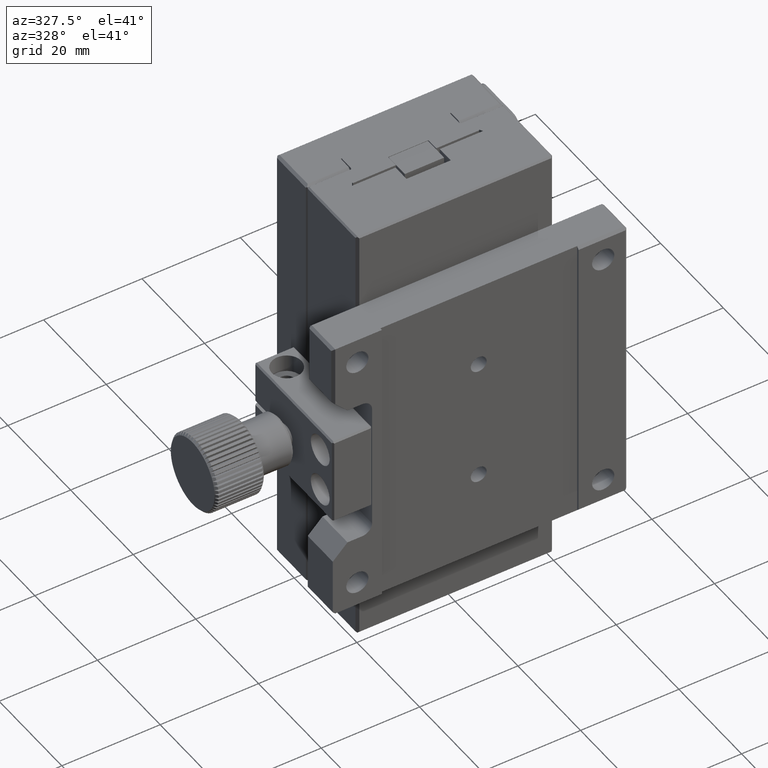
[diagram: clean part render]
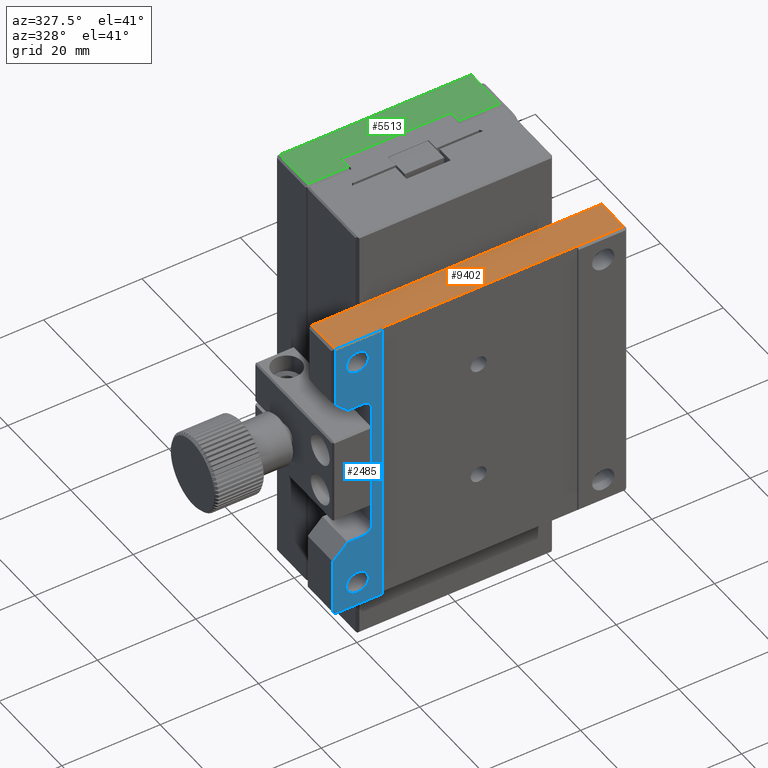
[diagram: same view with three faces highlighted in distinct colors, each labeled with its STEP entity id]
A machine part, auxiliary view with three faces highlighted in distinct colors.
Their STEP definitions:

[orange] entity #9402 — the highlighted planar face has unit normal (0, 0, -1).
#182 = DIRECTION ( 'NONE',  ( -1.000000000000000000, 0.000000000000000000, -0.000000000000000000 ) ) ;
#534 = CARTESIAN_POINT ( 'NONE',  ( 29.50000000000000000, 0.000000000000000000, 30.00000000000000000 ) ) ;
#1280 = CARTESIAN_POINT ( 'NONE',  ( -30.00000000000000000, -8.000000000000000000, 30.00000000000000000 ) ) ;
#1569 = LINE ( 'NONE', #9031, #12522 ) ;
#1671 = ORIENTED_EDGE ( 'NONE', *, *, #14236, .F. ) ;
#1811 = VECTOR ( 'NONE', #8190, 1000.000000000000000 ) ;
#2146 = ORIENTED_EDGE ( 'NONE', *, *, #12626, .F. ) ;
#2207 = DIRECTION ( 'NONE',  ( 0.000000000000000000, 0.000000000000000000, -1.000000000000000000 ) ) ;
#2379 = PLANE ( 'NONE',  #12331 ) ;
#2718 = CARTESIAN_POINT ( 'NONE',  ( -29.50000000000000355, -8.000000000000000000, 30.00000000000000000 ) ) ;
#2827 = VERTEX_POINT ( 'NONE', #10036 ) ;
#3089 = LINE ( 'NONE', #5473, #14637 ) ;
#3365 = ORIENTED_EDGE ( 'NONE', *, *, #14473, .F. ) ;
#3514 = VERTEX_POINT ( 'NONE', #11112 ) ;
#3834 = LINE ( 'NONE', #1280, #8805 ) ;
#4316 = DIRECTION ( 'NONE',  ( -0.000000000000000000, -1.000000000000000000, -0.000000000000000000 ) ) ;
#4737 = CARTESIAN_POINT ( 'NONE',  ( 29.50000000000000711, -0.4999999999999987232, 30.00000000000000000 ) ) ;
#5473 = CARTESIAN_POINT ( 'NONE',  ( -20.00000000000000000, -7.500000000000000000, 30.00000000000000000 ) ) ;
#5638 = LINE ( 'NONE', #10635, #1811 ) ;
#5670 = EDGE_CURVE ( 'NONE', #8736, #15425, #13398, .T. ) ;
#5872 = VERTEX_POINT ( 'NONE', #15252 ) ;
#6334 = EDGE_CURVE ( 'NONE', #3514, #13371, #3834, .T. ) ;
#7401 = DIRECTION ( 'NONE',  ( -1.000000000000000000, 0.000000000000000000, -0.000000000000000000 ) ) ;
#7413 = DIRECTION ( 'NONE',  ( 1.000000000000000000, 0.000000000000000000, -0.000000000000000000 ) ) ;
#7720 = EDGE_LOOP ( 'NONE', ( #3365, #13771, #2146, #1671, #9728, #13758, #9300 ) ) ;
#7722 = EDGE_CURVE ( 'NONE', #5872, #2827, #5638, .T. ) ;
#8190 = DIRECTION ( 'NONE',  ( -1.000000000000000000, 0.000000000000000000, -0.000000000000000000 ) ) ;
#8269 = CARTESIAN_POINT ( 'NONE',  ( -20.00000000000000000, -7.500000000000000000, 30.00000000000000000 ) ) ;
#8377 = VECTOR ( 'NONE', #4316, 1000.000000000000000 ) ;
#8736 = VERTEX_POINT ( 'NONE', #10062 ) ;
#8805 = VECTOR ( 'NONE', #15142, 1000.000000000000000 ) ;
#9031 = CARTESIAN_POINT ( 'NONE',  ( -29.50000000000000355, 0.000000000000000000, 30.00000000000000000 ) ) ;
#9300 = ORIENTED_EDGE ( 'NONE', *, *, #5670, .F. ) ;
#9402 = ADVANCED_FACE ( 'NONE', ( #9848 ), #2379, .F. ) ;
#9728 = ORIENTED_EDGE ( 'NONE', *, *, #7722, .F. ) ;
#9848 = FACE_OUTER_BOUND ( 'NONE', #7720, .T. ) ;
#10036 = CARTESIAN_POINT ( 'NONE',  ( 20.00000000000001776, -7.500000000000000000, 30.00000000000000000 ) ) ;
#10062 = CARTESIAN_POINT ( 'NONE',  ( -29.50000000000001066, -0.4999999999999978351, 30.00000000000000000 ) ) ;
#10635 = CARTESIAN_POINT ( 'NONE',  ( -30.00000000000000000, -7.500000000000000000, 30.00000000000000000 ) ) ;
#11112 = CARTESIAN_POINT ( 'NONE',  ( -20.00000000000000000, -8.000000000000000000, 30.00000000000000000 ) ) ;
#11859 = DIRECTION ( 'NONE',  ( 0.000000000000000000, -1.000000000000000000, -0.000000000000000000 ) ) ;
#11925 = LINE ( 'NONE', #534, #8377 ) ;
#12235 = VERTEX_POINT ( 'NONE', #8269 ) ;
#12331 = AXIS2_PLACEMENT_3D ( 'NONE', #14844, #2207, #7401 ) ;
#12522 = VECTOR ( 'NONE', #14036, 1000.000000000000000 ) ;
#12626 = EDGE_CURVE ( 'NONE', #12235, #3514, #3089, .T. ) ;
#13283 = VECTOR ( 'NONE', #7413, 1000.000000000000000 ) ;
#13371 = VERTEX_POINT ( 'NONE', #2718 ) ;
#13398 = LINE ( 'NONE', #14854, #13283 ) ;
#13758 = ORIENTED_EDGE ( 'NONE', *, *, #15663, .F. ) ;
#13771 = ORIENTED_EDGE ( 'NONE', *, *, #6334, .F. ) ;
#14036 = DIRECTION ( 'NONE',  ( 0.000000000000000000, 1.000000000000000000, 0.000000000000000000 ) ) ;
#14236 = EDGE_CURVE ( 'NONE', #2827, #12235, #15289, .T. ) ;
#14473 = EDGE_CURVE ( 'NONE', #13371, #8736, #1569, .T. ) ;
#14605 = VECTOR ( 'NONE', #182, 1000.000000000000000 ) ;
#14637 = VECTOR ( 'NONE', #11859, 1000.000000000000000 ) ;
#14844 = CARTESIAN_POINT ( 'NONE',  ( -30.00000000000000000, 0.000000000000000000, 30.00000000000000000 ) ) ;
#14854 = CARTESIAN_POINT ( 'NONE',  ( 0.000000000000000000, -0.4999999999999978351, 30.00000000000000000 ) ) ;
#15142 = DIRECTION ( 'NONE',  ( -1.000000000000000000, 0.000000000000000000, -0.000000000000000000 ) ) ;
#15212 = CARTESIAN_POINT ( 'NONE',  ( -30.00000000000000000, -7.500000000000000000, 30.00000000000000000 ) ) ;
#15252 = CARTESIAN_POINT ( 'NONE',  ( 29.50000000000000711, -7.500000000000000888, 30.00000000000000000 ) ) ;
#15289 = LINE ( 'NONE', #15212, #14605 ) ;
#15425 = VERTEX_POINT ( 'NONE', #4737 ) ;
#15663 = EDGE_CURVE ( 'NONE', #15425, #5872, #11925, .T. ) ;

[blue] entity #2485 — the highlighted planar face has unit normal (0, 1, 0).
#1 = VECTOR ( 'NONE', #3962, 1000.000000000000000 ) ;
#60 = EDGE_CURVE ( 'NONE', #3514, #2487, #742, .T. ) ;
#85 = VERTEX_POINT ( 'NONE', #10027 ) ;
#446 = CARTESIAN_POINT ( 'NONE',  ( -30.00000000000000000, -8.000000000000000000, -18.00000000000000355 ) ) ;
#491 = CIRCLE ( 'NONE', #9410, 2.250000000000001776 ) ;
#742 = LINE ( 'NONE', #7321, #4173 ) ;
#802 = CARTESIAN_POINT ( 'NONE',  ( -22.00000000000000000, -8.000000000000000000, -13.00000000000000178 ) ) ;
#825 = CARTESIAN_POINT ( 'NONE',  ( -27.00000000000000000, -8.000000000000000000, -15.00000000000000000 ) ) ;
#943 = VERTEX_POINT ( 'NONE', #2348 ) ;
#965 = EDGE_CURVE ( 'NONE', #1318, #13371, #13894, .T. ) ;
#1199 = CARTESIAN_POINT ( 'NONE',  ( -24.00000000000000000, -8.000000000000000000, 15.00000000000000000 ) ) ;
#1277 = ORIENTED_EDGE ( 'NONE', *, *, #15060, .F. ) ;
#1280 = CARTESIAN_POINT ( 'NONE',  ( -30.00000000000000000, -8.000000000000000000, 30.00000000000000000 ) ) ;
#1318 = VERTEX_POINT ( 'NONE', #3222 ) ;
#1417 = PLANE ( 'NONE',  #13795 ) ;
#1496 = DIRECTION ( 'NONE',  ( 0.000000000000000000, -0.000000000000000000, 1.000000000000000000 ) ) ;
#1515 = VECTOR ( 'NONE', #8620, 1000.000000000000000 ) ;
#1970 = CARTESIAN_POINT ( 'NONE',  ( 0.000000000000000000, -8.000000000000000000, -30.00000000000000000 ) ) ;
#2210 = LINE ( 'NONE', #825, #1515 ) ;
#2334 = LINE ( 'NONE', #10869, #16246 ) ;
#2348 = CARTESIAN_POINT ( 'NONE',  ( -25.00000000000000000, -8.000000000000000000, -27.25000000000000355 ) ) ;
#2354 = DIRECTION ( 'NONE',  ( -0.7071067811865470176, 0.000000000000000000, 0.7071067811865480168 ) ) ;
#2485 = ADVANCED_FACE ( 'NONE', ( #6438, #5212, #2735 ), #1417, .F. ) ;
#2487 = VERTEX_POINT ( 'NONE', #6516 ) ;
#2718 = CARTESIAN_POINT ( 'NONE',  ( -29.50000000000000355, -8.000000000000000000, 30.00000000000000000 ) ) ;
#2728 = CARTESIAN_POINT ( 'NONE',  ( -29.50000000000000355, -8.000000000000000000, 0.000000000000000000 ) ) ;
#2735 = FACE_BOUND ( 'NONE', #13131, .T. ) ;
#2943 = CARTESIAN_POINT ( 'NONE',  ( -29.50000000000000711, -8.000000000000001776, -30.00000000000000000 ) ) ;
#3169 = CARTESIAN_POINT ( 'NONE',  ( -27.00000000000000000, -8.000000000000000000, -15.00000000000000000 ) ) ;
#3173 = EDGE_CURVE ( 'NONE', #10627, #4483, #9985, .T. ) ;
#3222 = CARTESIAN_POINT ( 'NONE',  ( -29.50000000000000000, -8.000000000000000000, 17.50000000000001066 ) ) ;
#3261 = CARTESIAN_POINT ( 'NONE',  ( -25.00000000000000000, -8.000000000000000000, 25.00000000000000000 ) ) ;
#3369 = AXIS2_PLACEMENT_3D ( 'NONE', #5289, #15272, #4045 ) ;
#3514 = VERTEX_POINT ( 'NONE', #11112 ) ;
#3538 = DIRECTION ( 'NONE',  ( -1.000000000000000000, -0.000000000000000000, 0.000000000000000000 ) ) ;
#3831 = ORIENTED_EDGE ( 'NONE', *, *, #7651, .F. ) ;
#3834 = LINE ( 'NONE', #1280, #8805 ) ;
#3962 = DIRECTION ( 'NONE',  ( 0.000000000000000000, 0.000000000000000000, 1.000000000000000000 ) ) ;
#4042 = LINE ( 'NONE', #10280, #1 ) ;
#4045 = DIRECTION ( 'NONE',  ( 0.000000000000000000, 0.000000000000000000, -1.000000000000000000 ) ) ;
#4173 = VECTOR ( 'NONE', #6092, 1000.000000000000000 ) ;
#4483 = VERTEX_POINT ( 'NONE', #7797 ) ;
#5003 = DIRECTION ( 'NONE',  ( 1.000000000000000000, 0.000000000000000000, -0.000000000000000000 ) ) ;
#5212 = FACE_BOUND ( 'NONE', #6697, .T. ) ;
#5216 = VECTOR ( 'NONE', #2354, 1000.000000000000000 ) ;
#5289 = CARTESIAN_POINT ( 'NONE',  ( -24.00000000000000000, -8.000000000000000000, -13.00000000000000178 ) ) ;
#5486 = ORIENTED_EDGE ( 'NONE', *, *, #13708, .F. ) ;
#5569 = DIRECTION ( 'NONE',  ( 0.000000000000000000, 0.000000000000000000, -1.000000000000000000 ) ) ;
#5668 = ORIENTED_EDGE ( 'NONE', *, *, #14472, .T. ) ;
#6039 = VECTOR ( 'NONE', #3538, 1000.000000000000000 ) ;
#6068 = CARTESIAN_POINT ( 'NONE',  ( -24.00000000000000000, -8.000000000000000000, 13.00000000000000178 ) ) ;
#6092 = DIRECTION ( 'NONE',  ( -0.000000000000000000, 0.000000000000000000, -1.000000000000000000 ) ) ;
#6133 = LINE ( 'NONE', #9581, #5216 ) ;
#6165 = VERTEX_POINT ( 'NONE', #802 ) ;
#6334 = EDGE_CURVE ( 'NONE', #3514, #13371, #3834, .T. ) ;
#6438 = FACE_OUTER_BOUND ( 'NONE', #15829, .T. ) ;
#6516 = CARTESIAN_POINT ( 'NONE',  ( -20.00000000000000355, -8.000000000000000000, -30.00000000000000000 ) ) ;
#6697 = EDGE_LOOP ( 'NONE', ( #8999 ) ) ;
#6708 = CARTESIAN_POINT ( 'NONE',  ( -27.00000000000000000, -8.000000000000000000, 15.00000000000000000 ) ) ;
#6826 = ORIENTED_EDGE ( 'NONE', *, *, #14618, .F. ) ;
#6951 = LINE ( 'NONE', #6708, #8367 ) ;
#7153 = ORIENTED_EDGE ( 'NONE', *, *, #10186, .T. ) ;
#7306 = CARTESIAN_POINT ( 'NONE',  ( -25.00000000000000000, -8.000000000000000000, 22.75000000000000000 ) ) ;
#7321 = CARTESIAN_POINT ( 'NONE',  ( -20.00000000000000000, -8.000000000000000000, 0.000000000000000000 ) ) ;
#7382 = DIRECTION ( 'NONE',  ( -0.000000000000000000, 1.000000000000000000, -0.000000000000000000 ) ) ;
#7462 = ORIENTED_EDGE ( 'NONE', *, *, #965, .F. ) ;
#7535 = LINE ( 'NONE', #11304, #14629 ) ;
#7651 = EDGE_CURVE ( 'NONE', #11141, #11141, #491, .T. ) ;
#7654 = VERTEX_POINT ( 'NONE', #2943 ) ;
#7797 = CARTESIAN_POINT ( 'NONE',  ( -22.00000000000000711, -8.000000000000000000, 13.00000000000000178 ) ) ;
#8024 = VECTOR ( 'NONE', #10044, 1000.000000000000000 ) ;
#8239 = ORIENTED_EDGE ( 'NONE', *, *, #3173, .T. ) ;
#8283 = ORIENTED_EDGE ( 'NONE', *, *, #9103, .F. ) ;
#8307 = CARTESIAN_POINT ( 'NONE',  ( -29.50000000000000355, -8.000000000000000000, -30.00000000000000000 ) ) ;
#8367 = VECTOR ( 'NONE', #14247, 1000.000000000000000 ) ;
#8423 = DIRECTION ( 'NONE',  ( 0.000000000000000000, 0.000000000000000000, -1.000000000000000000 ) ) ;
#8503 = VERTEX_POINT ( 'NONE', #14336 ) ;
#8620 = DIRECTION ( 'NONE',  ( 0.7071067811865470176, 0.000000000000000000, 0.7071067811865480168 ) ) ;
#8622 = ORIENTED_EDGE ( 'NONE', *, *, #10978, .F. ) ;
#8722 = EDGE_CURVE ( 'NONE', #85, #1318, #6133, .T. ) ;
#8805 = VECTOR ( 'NONE', #15142, 1000.000000000000000 ) ;
#8999 = ORIENTED_EDGE ( 'NONE', *, *, #15441, .F. ) ;
#9059 = ORIENTED_EDGE ( 'NONE', *, *, #6334, .T. ) ;
#9103 = EDGE_CURVE ( 'NONE', #6165, #4483, #4042, .T. ) ;
#9410 = AXIS2_PLACEMENT_3D ( 'NONE', #3261, #10564, #5569 ) ;
#9569 = CARTESIAN_POINT ( 'NONE',  ( -25.00000000000000000, -8.000000000000000000, -25.00000000000000000 ) ) ;
#9581 = CARTESIAN_POINT ( 'NONE',  ( -30.00000000000000000, -8.000000000000000000, 18.00000000000000355 ) ) ;
#9985 = CIRCLE ( 'NONE', #10519, 1.999999999999989564 ) ;
#10027 = CARTESIAN_POINT ( 'NONE',  ( -27.00000000000000000, -8.000000000000000000, 15.00000000000000000 ) ) ;
#10044 = DIRECTION ( 'NONE',  ( 0.000000000000000000, -0.000000000000000000, 1.000000000000000000 ) ) ;
#10186 = EDGE_CURVE ( 'NONE', #12584, #13586, #2334, .T. ) ;
#10226 = ORIENTED_EDGE ( 'NONE', *, *, #60, .F. ) ;
#10280 = CARTESIAN_POINT ( 'NONE',  ( -22.00000000000000000, -8.000000000000000000, 13.00000000000000178 ) ) ;
#10437 = CIRCLE ( 'NONE', #3369, 2.000000000000000000 ) ;
#10460 = AXIS2_PLACEMENT_3D ( 'NONE', #9569, #14558, #15968 ) ;
#10519 = AXIS2_PLACEMENT_3D ( 'NONE', #6068, #7382, #12373 ) ;
#10564 = DIRECTION ( 'NONE',  ( 0.000000000000000000, -1.000000000000000000, 0.000000000000000000 ) ) ;
#10627 = VERTEX_POINT ( 'NONE', #1199 ) ;
#10869 = CARTESIAN_POINT ( 'NONE',  ( -30.00000000000000000, -8.000000000000000000, -30.00000000000000000 ) ) ;
#10978 = EDGE_CURVE ( 'NONE', #10627, #85, #6951, .T. ) ;
#11078 = CARTESIAN_POINT ( 'NONE',  ( -30.00000000000000000, -8.000000000000000000, -29.50000000000000355 ) ) ;
#11112 = CARTESIAN_POINT ( 'NONE',  ( -20.00000000000000000, -8.000000000000000000, 30.00000000000000000 ) ) ;
#11141 = VERTEX_POINT ( 'NONE', #7306 ) ;
#11233 = CIRCLE ( 'NONE', #10460, 2.250000000000001776 ) ;
#11304 = CARTESIAN_POINT ( 'NONE',  ( -24.00000000000000000, -8.000000000000000000, -15.00000000000000000 ) ) ;
#11425 = DIRECTION ( 'NONE',  ( 0.000000000000000000, 1.000000000000000000, 0.000000000000000000 ) ) ;
#12052 = EDGE_CURVE ( 'NONE', #7654, #13586, #15077, .T. ) ;
#12373 = DIRECTION ( 'NONE',  ( 0.000000000000000000, 0.000000000000000000, -1.000000000000000000 ) ) ;
#12584 = VERTEX_POINT ( 'NONE', #446 ) ;
#13131 = EDGE_LOOP ( 'NONE', ( #3831 ) ) ;
#13371 = VERTEX_POINT ( 'NONE', #2718 ) ;
#13510 = ORIENTED_EDGE ( 'NONE', *, *, #8722, .F. ) ;
#13586 = VERTEX_POINT ( 'NONE', #11078 ) ;
#13708 = EDGE_CURVE ( 'NONE', #2487, #7654, #14765, .T. ) ;
#13795 = AXIS2_PLACEMENT_3D ( 'NONE', #14965, #11425, #1496 ) ;
#13894 = LINE ( 'NONE', #2728, #8024 ) ;
#14247 = DIRECTION ( 'NONE',  ( -1.000000000000000000, 0.000000000000000000, -0.000000000000000000 ) ) ;
#14336 = CARTESIAN_POINT ( 'NONE',  ( -24.00000000000000000, -8.000000000000000000, -15.00000000000000000 ) ) ;
#14472 = EDGE_CURVE ( 'NONE', #6165, #8503, #10437, .T. ) ;
#14558 = DIRECTION ( 'NONE',  ( 0.000000000000000000, -1.000000000000000000, 0.000000000000000000 ) ) ;
#14618 = EDGE_CURVE ( 'NONE', #12584, #15654, #2210, .T. ) ;
#14629 = VECTOR ( 'NONE', #5003, 1000.000000000000000 ) ;
#14765 = LINE ( 'NONE', #1970, #6039 ) ;
#14959 = ORIENTED_EDGE ( 'NONE', *, *, #12052, .F. ) ;
#14965 = CARTESIAN_POINT ( 'NONE',  ( 0.000000000000000000, -8.000000000000000000, 0.000000000000000000 ) ) ;
#15060 = EDGE_CURVE ( 'NONE', #15654, #8503, #7535, .T. ) ;
#15077 = LINE ( 'NONE', #8307, #15462 ) ;
#15142 = DIRECTION ( 'NONE',  ( -1.000000000000000000, 0.000000000000000000, -0.000000000000000000 ) ) ;
#15272 = DIRECTION ( 'NONE',  ( -0.000000000000000000, 1.000000000000000000, -0.000000000000000000 ) ) ;
#15441 = EDGE_CURVE ( 'NONE', #943, #943, #11233, .T. ) ;
#15462 = VECTOR ( 'NONE', #15850, 1000.000000000000114 ) ;
#15654 = VERTEX_POINT ( 'NONE', #3169 ) ;
#15829 = EDGE_LOOP ( 'NONE', ( #14959, #5486, #10226, #9059, #7462, #13510, #8622, #8239, #8283, #5668, #1277, #6826, #7153 ) ) ;
#15850 = DIRECTION ( 'NONE',  ( -0.7071067811865474617, 0.000000000000000000, 0.7071067811865474617 ) ) ;
#15968 = DIRECTION ( 'NONE',  ( 0.000000000000000000, 0.000000000000000000, -1.000000000000000000 ) ) ;
#16246 = VECTOR ( 'NONE', #8423, 1000.000000000000000 ) ;

[green] entity #5513 — the highlighted planar face has unit normal (0, 0, 1).
#105 = LINE ( 'NONE', #2666, #8431 ) ;
#282 = EDGE_CURVE ( 'NONE', #3868, #1554, #9598, .T. ) ;
#743 = ORIENTED_EDGE ( 'NONE', *, *, #15118, .F. ) ;
#806 = VECTOR ( 'NONE', #4668, 1000.000000000000000 ) ;
#886 = CARTESIAN_POINT ( 'NONE',  ( 19.50000000000009948, 26.00000000000000355, 45.00000000000000000 ) ) ;
#1114 = EDGE_CURVE ( 'NONE', #7460, #11221, #8661, .T. ) ;
#1301 = DIRECTION ( 'NONE',  ( 0.000000000000000000, -1.000000000000000000, -0.000000000000000000 ) ) ;
#1325 = EDGE_LOOP ( 'NONE', ( #10070, #5546, #12132, #12601, #16220, #743, #3567, #12316 ) ) ;
#1340 = FACE_OUTER_BOUND ( 'NONE', #1325, .T. ) ;
#1376 = CARTESIAN_POINT ( 'NONE',  ( 11.20000000000010054, 26.00000000000000355, 45.00000000000000000 ) ) ;
#1554 = VERTEX_POINT ( 'NONE', #7787 ) ;
#2010 = CARTESIAN_POINT ( 'NONE',  ( 11.20000000000010054, 19.00000000000007816, 45.00000000000000000 ) ) ;
#2412 = VERTEX_POINT ( 'NONE', #7507 ) ;
#2666 = CARTESIAN_POINT ( 'NONE',  ( 0.000000000000000000, 18.99999999999984368, 45.00000000000000000 ) ) ;
#3093 = EDGE_CURVE ( 'NONE', #15401, #3868, #9586, .T. ) ;
#3143 = CARTESIAN_POINT ( 'NONE',  ( -19.49999999999990052, 26.00000000000000355, 45.00000000000000000 ) ) ;
#3567 = ORIENTED_EDGE ( 'NONE', *, *, #14511, .T. ) ;
#3598 = EDGE_CURVE ( 'NONE', #11221, #13915, #105, .T. ) ;
#3868 = VERTEX_POINT ( 'NONE', #7254 ) ;
#4381 = DIRECTION ( 'NONE',  ( 0.000000000000000000, 0.000000000000000000, 1.000000000000000000 ) ) ;
#4668 = DIRECTION ( 'NONE',  ( 1.000000000000000000, 0.000000000000000000, -0.000000000000000000 ) ) ;
#4677 = DIRECTION ( 'NONE',  ( -0.000000000000000000, 1.000000000000000000, 0.000000000000000000 ) ) ;
#4755 = CARTESIAN_POINT ( 'NONE',  ( -11.19999999999982698, 16.49999999999982592, 45.00000000000000000 ) ) ;
#4912 = LINE ( 'NONE', #9907, #7324 ) ;
#4958 = VECTOR ( 'NONE', #10071, 1000.000000000000000 ) ;
#5035 = EDGE_CURVE ( 'NONE', #13915, #15401, #5165, .T. ) ;
#5155 = LINE ( 'NONE', #6142, #4958 ) ;
#5165 = LINE ( 'NONE', #1376, #15632 ) ;
#5383 = CARTESIAN_POINT ( 'NONE',  ( -11.19999999999986251, 18.99999999999984368, 45.00000000000000000 ) ) ;
#5443 = LINE ( 'NONE', #3143, #12256 ) ;
#5513 = ADVANCED_FACE ( 'NONE', ( #1340 ), #6358, .T. ) ;
#5546 = ORIENTED_EDGE ( 'NONE', *, *, #3598, .T. ) ;
#6142 = CARTESIAN_POINT ( 'NONE',  ( 6.923236912534310939E-15, 25.49999999999986500, 45.00000000000012790 ) ) ;
#6289 = VECTOR ( 'NONE', #11116, 1000.000000000000000 ) ;
#6358 = PLANE ( 'NONE',  #12499 ) ;
#6915 = DIRECTION ( 'NONE',  ( 0.000000000000000000, -1.000000000000000000, -0.000000000000000000 ) ) ;
#6925 = CARTESIAN_POINT ( 'NONE',  ( 0.000000000000000000, 26.00000000000000355, 45.00000000000000000 ) ) ;
#7254 = CARTESIAN_POINT ( 'NONE',  ( 19.50000000000008882, 16.50000000000025580, 45.00000000000001421 ) ) ;
#7324 = VECTOR ( 'NONE', #14904, 1000.000000000000000 ) ;
#7389 = EDGE_CURVE ( 'NONE', #8230, #7460, #4912, .T. ) ;
#7460 = VERTEX_POINT ( 'NONE', #4755 ) ;
#7507 = CARTESIAN_POINT ( 'NONE',  ( -19.49999999999992539, 25.49999999999986500, 45.00000000000002842 ) ) ;
#7787 = CARTESIAN_POINT ( 'NONE',  ( 19.49999999999996092, 25.50000000000020250, 45.00000000000007105 ) ) ;
#8230 = VERTEX_POINT ( 'NONE', #9956 ) ;
#8340 = CARTESIAN_POINT ( 'NONE',  ( -11.19999999999989981, 26.00000000000000355, 45.00000000000000000 ) ) ;
#8431 = VECTOR ( 'NONE', #14056, 1000.000000000000000 ) ;
#8661 = LINE ( 'NONE', #8340, #6289 ) ;
#9586 = LINE ( 'NONE', #13600, #806 ) ;
#9598 = LINE ( 'NONE', #886, #14008 ) ;
#9907 = CARTESIAN_POINT ( 'NONE',  ( 0.000000000000000000, 16.49999999999979394, 45.00000000000000000 ) ) ;
#9956 = CARTESIAN_POINT ( 'NONE',  ( -19.49999999999988631, 16.49999999999979394, 45.00000000000000711 ) ) ;
#10070 = ORIENTED_EDGE ( 'NONE', *, *, #1114, .T. ) ;
#10071 = DIRECTION ( 'NONE',  ( 1.000000000000000000, 6.923236912534318039E-15, 6.923236912534309362E-15 ) ) ;
#11116 = DIRECTION ( 'NONE',  ( -0.000000000000000000, 1.000000000000000000, 0.000000000000000000 ) ) ;
#11221 = VERTEX_POINT ( 'NONE', #5383 ) ;
#12132 = ORIENTED_EDGE ( 'NONE', *, *, #5035, .T. ) ;
#12256 = VECTOR ( 'NONE', #6915, 1000.000000000000000 ) ;
#12316 = ORIENTED_EDGE ( 'NONE', *, *, #7389, .T. ) ;
#12499 = AXIS2_PLACEMENT_3D ( 'NONE', #6925, #4381, #14372 ) ;
#12601 = ORIENTED_EDGE ( 'NONE', *, *, #3093, .T. ) ;
#13600 = CARTESIAN_POINT ( 'NONE',  ( 0.000000000000000000, 16.50000000000015987, 45.00000000000000000 ) ) ;
#13915 = VERTEX_POINT ( 'NONE', #2010 ) ;
#14008 = VECTOR ( 'NONE', #4677, 1000.000000000000000 ) ;
#14056 = DIRECTION ( 'NONE',  ( 1.000000000000000000, 0.000000000000000000, -0.000000000000000000 ) ) ;
#14372 = DIRECTION ( 'NONE',  ( 1.000000000000000000, 0.000000000000000000, -0.000000000000000000 ) ) ;
#14511 = EDGE_CURVE ( 'NONE', #2412, #8230, #5443, .T. ) ;
#14904 = DIRECTION ( 'NONE',  ( 1.000000000000000000, 0.000000000000000000, -0.000000000000000000 ) ) ;
#15118 = EDGE_CURVE ( 'NONE', #2412, #1554, #5155, .T. ) ;
#15401 = VERTEX_POINT ( 'NONE', #15807 ) ;
#15632 = VECTOR ( 'NONE', #1301, 1000.000000000000000 ) ;
#15807 = CARTESIAN_POINT ( 'NONE',  ( 11.20000000000013607, 16.50000000000017408, 45.00000000000001421 ) ) ;
#16220 = ORIENTED_EDGE ( 'NONE', *, *, #282, .T. ) ;